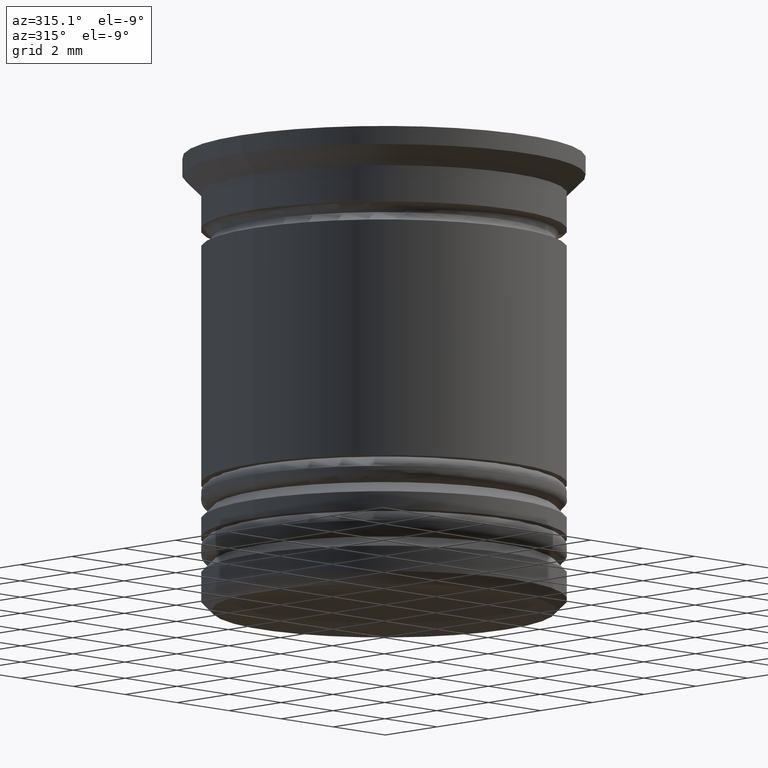
[diagram: clean part render]
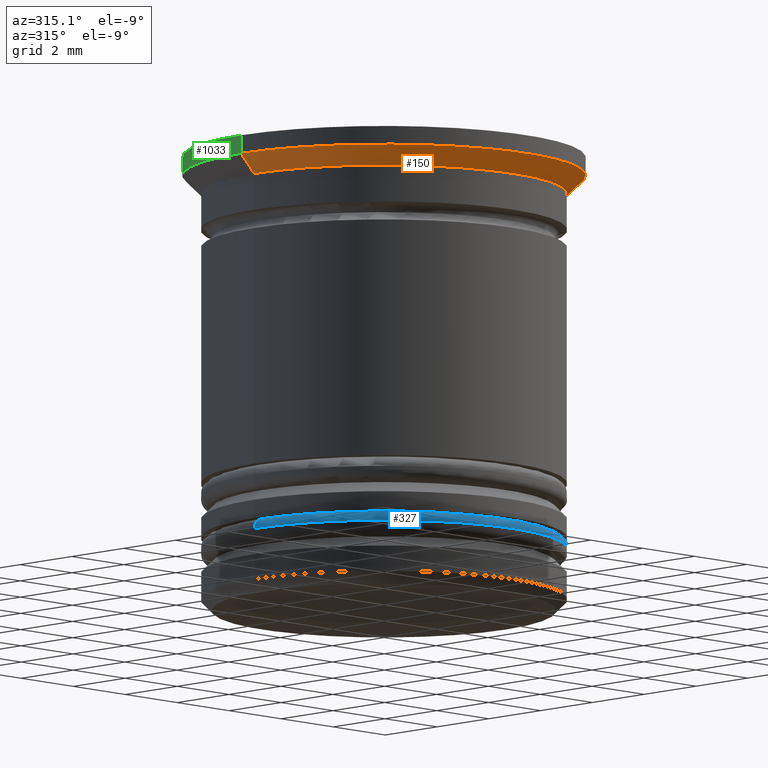
[diagram: same view with three faces highlighted in distinct colors, each labeled with its STEP entity id]
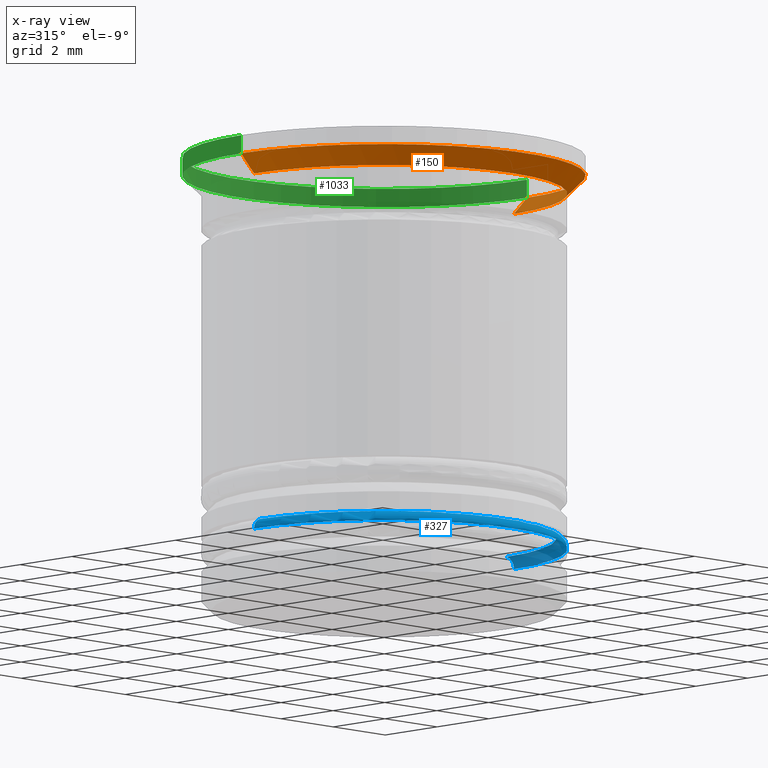
[diagram: x-ray of the same camera — body ghosted, the three highlighted faces saturated]
A machine part, auxiliary view with three faces highlighted in distinct colors.
The next image is the same camera in x-ray (body ghosted, the three faces saturated) — at least one of them is partly hidden behind the body in this view.
Their STEP definitions:

[orange] entity #150 — the highlighted conical surface has half-angle 45 deg.
#40 = VERTEX_POINT ( 'NONE', #548 ) ;
#85 = LINE ( 'NONE', #1905, #162 ) ;
#144 = VERTEX_POINT ( 'NONE', #1637 ) ;
#150 = ADVANCED_FACE ( 'NONE', ( #369 ), #157, .T. ) ;
#157 = CONICAL_SURFACE ( 'NONE', #312, 5.500000000000000000, 0.7853981633974500554 ) ;
#162 = VECTOR ( 'NONE', #997, 1000.000000000000000 ) ;
#165 = VERTEX_POINT ( 'NONE', #512 ) ;
#312 = AXIS2_PLACEMENT_3D ( 'NONE', #1823, #1039, #1494 ) ;
#317 = CIRCLE ( 'NONE', #602, 5.500000000000000000 ) ;
#369 = FACE_OUTER_BOUND ( 'NONE', #667, .T. ) ;
#426 = CARTESIAN_POINT ( 'NONE',  ( -5.500000000000000000, 6.735557395310442023E-16, -0.4999999999999976130 ) ) ;
#488 = VECTOR ( 'NONE', #1888, 1000.000000000000000 ) ;
#512 = CARTESIAN_POINT ( 'NONE',  ( -4.999999999999999112, 6.123233995736765296E-16, -0.9999999999999997780 ) ) ;
#548 = CARTESIAN_POINT ( 'NONE',  ( -5.500000000000000000, 6.735557395310442023E-16, -0.4999999999999976130 ) ) ;
#550 = DIRECTION ( 'NONE',  ( -0.000000000000000000, -0.000000000000000000, 1.000000000000000000 ) ) ;
#602 = AXIS2_PLACEMENT_3D ( 'NONE', #648, #1915, #1135 ) ;
#648 = CARTESIAN_POINT ( 'NONE',  ( 0.000000000000000000, 0.000000000000000000, -0.4999999999999976130 ) ) ;
#667 = EDGE_LOOP ( 'NONE', ( #1946, #1945, #1936, #1299 ) ) ;
#795 = EDGE_CURVE ( 'NONE', #165, #40, #2066, .T. ) ;
#950 = VERTEX_POINT ( 'NONE', #1029 ) ;
#997 = DIRECTION ( 'NONE',  ( 0.7071067811865487940, 0.000000000000000000, 0.7071067811865463515 ) ) ;
#1029 = CARTESIAN_POINT ( 'NONE',  ( 5.500000000000000000, 0.000000000000000000, -0.4999999999999976130 ) ) ;
#1039 = DIRECTION ( 'NONE',  ( -0.000000000000000000, -0.000000000000000000, 1.000000000000000000 ) ) ;
#1063 = AXIS2_PLACEMENT_3D ( 'NONE', #1267, #550, #1154 ) ;
#1135 = DIRECTION ( 'NONE',  ( -1.000000000000000000, 0.000000000000000000, 0.000000000000000000 ) ) ;
#1154 = DIRECTION ( 'NONE',  ( 1.000000000000000000, 0.000000000000000000, 0.000000000000000000 ) ) ;
#1166 = EDGE_CURVE ( 'NONE', #165, #144, #1971, .T. ) ;
#1175 = EDGE_CURVE ( 'NONE', #144, #950, #85, .T. ) ;
#1191 = EDGE_CURVE ( 'NONE', #40, #950, #317, .T. ) ;
#1267 = CARTESIAN_POINT ( 'NONE',  ( 0.000000000000000000, 0.000000000000000000, -0.9999999999999997780 ) ) ;
#1299 = ORIENTED_EDGE ( 'NONE', *, *, #1191, .F. ) ;
#1494 = DIRECTION ( 'NONE',  ( 1.000000000000000000, 0.000000000000000000, 0.000000000000000000 ) ) ;
#1637 = CARTESIAN_POINT ( 'NONE',  ( 4.999999999999999112, 0.000000000000000000, -0.9999999999999997780 ) ) ;
#1823 = CARTESIAN_POINT ( 'NONE',  ( 0.000000000000000000, 0.000000000000000000, -0.4999999999999976130 ) ) ;
#1888 = DIRECTION ( 'NONE',  ( -0.7071067811865487940, 8.659560562354948882E-17, 0.7071067811865463515 ) ) ;
#1905 = CARTESIAN_POINT ( 'NONE',  ( 5.500000000000000000, 0.000000000000000000, -0.4999999999999976130 ) ) ;
#1915 = DIRECTION ( 'NONE',  ( -0.000000000000000000, -0.000000000000000000, 1.000000000000000000 ) ) ;
#1936 = ORIENTED_EDGE ( 'NONE', *, *, #1175, .T. ) ;
#1945 = ORIENTED_EDGE ( 'NONE', *, *, #1166, .T. ) ;
#1946 = ORIENTED_EDGE ( 'NONE', *, *, #795, .F. ) ;
#1971 = CIRCLE ( 'NONE', #1063, 4.999999999999999112 ) ;
#2066 = LINE ( 'NONE', #426, #488 ) ;

[blue] entity #327 — the highlighted toroidal blend (fillet) surface has major radius 4.7 mm and minor (blend) radius 0.3 mm.
#115 = CARTESIAN_POINT ( 'NONE',  ( 4.700000000000003730, 5.755839955992564585E-16, -10.80000000000000249 ) ) ;
#134 = CIRCLE ( 'NONE', #1292, 5.000000000000003553 ) ;
#137 = ORIENTED_EDGE ( 'NONE', *, *, #1666, .F. ) ;
#198 = DIRECTION ( 'NONE',  ( -0.000000000000000000, -0.000000000000000000, 1.000000000000000000 ) ) ;
#327 = ADVANCED_FACE ( 'NONE', ( #1421 ), #346, .T. ) ;
#346 = TOROIDAL_SURFACE ( 'NONE', #1256, 4.700000000000003730, 0.2999999999999999889 ) ;
#375 = DIRECTION ( 'NONE',  ( 0.000000000000000000, 0.000000000000000000, -1.000000000000000000 ) ) ;
#493 = CIRCLE ( 'NONE', #1537, 4.700000000000003730 ) ;
#579 = CARTESIAN_POINT ( 'NONE',  ( -5.000000000000003553, 6.123233995736769241E-16, -10.80000000000000249 ) ) ;
#588 = DIRECTION ( 'NONE',  ( -1.000000000000000000, -1.224646799147353207E-16, 0.000000000000000000 ) ) ;
#638 = CARTESIAN_POINT ( 'NONE',  ( -4.700000000000003730, 0.000000000000000000, -10.50000000000000178 ) ) ;
#650 = ORIENTED_EDGE ( 'NONE', *, *, #1551, .F. ) ;
#715 = EDGE_CURVE ( 'NONE', #1106, #1370, #1357, .T. ) ;
#779 = ORIENTED_EDGE ( 'NONE', *, *, #1047, .T. ) ;
#802 = DIRECTION ( 'NONE',  ( -0.000000000000000000, -1.000000000000000000, -0.000000000000000000 ) ) ;
#839 = CARTESIAN_POINT ( 'NONE',  ( 5.000000000000003553, 0.000000000000000000, -10.80000000000000249 ) ) ;
#841 = EDGE_LOOP ( 'NONE', ( #1776, #650, #779, #137 ) ) ;
#1047 = EDGE_CURVE ( 'NONE', #2028, #1617, #1257, .T. ) ;
#1073 = DIRECTION ( 'NONE',  ( -1.000000000000000000, 0.000000000000000000, 0.000000000000000000 ) ) ;
#1106 = VERTEX_POINT ( 'NONE', #2063 ) ;
#1256 = AXIS2_PLACEMENT_3D ( 'NONE', #1590, #2077, #2067 ) ;
#1257 = CIRCLE ( 'NONE', #1625, 0.2999999999999999334 ) ;
#1292 = AXIS2_PLACEMENT_3D ( 'NONE', #1365, #375, #2003 ) ;
#1357 = CIRCLE ( 'NONE', #1968, 0.2999999999999999334 ) ;
#1365 = CARTESIAN_POINT ( 'NONE',  ( 0.000000000000000000, 0.000000000000000000, -10.80000000000000249 ) ) ;
#1370 = VERTEX_POINT ( 'NONE', #839 ) ;
#1400 = CARTESIAN_POINT ( 'NONE',  ( -4.700000000000003730, 0.000000000000000000, -10.80000000000000249 ) ) ;
#1421 = FACE_OUTER_BOUND ( 'NONE', #841, .T. ) ;
#1537 = AXIS2_PLACEMENT_3D ( 'NONE', #1788, #198, #1073 ) ;
#1551 = EDGE_CURVE ( 'NONE', #2028, #1106, #493, .T. ) ;
#1583 = DIRECTION ( 'NONE',  ( -1.224646799147353207E-16, 1.000000000000000000, 0.000000000000000000 ) ) ;
#1590 = CARTESIAN_POINT ( 'NONE',  ( 0.000000000000000000, 0.000000000000000000, -10.80000000000000249 ) ) ;
#1617 = VERTEX_POINT ( 'NONE', #579 ) ;
#1625 = AXIS2_PLACEMENT_3D ( 'NONE', #1400, #802, #2082 ) ;
#1666 = EDGE_CURVE ( 'NONE', #1370, #1617, #134, .T. ) ;
#1776 = ORIENTED_EDGE ( 'NONE', *, *, #715, .F. ) ;
#1788 = CARTESIAN_POINT ( 'NONE',  ( 0.000000000000000000, 0.000000000000000000, -10.50000000000000178 ) ) ;
#1968 = AXIS2_PLACEMENT_3D ( 'NONE', #115, #1583, #588 ) ;
#2003 = DIRECTION ( 'NONE',  ( -1.000000000000000000, 0.000000000000000000, 0.000000000000000000 ) ) ;
#2028 = VERTEX_POINT ( 'NONE', #638 ) ;
#2063 = CARTESIAN_POINT ( 'NONE',  ( 4.700000000000003730, 5.939536975864667899E-16, -10.50000000000000178 ) ) ;
#2067 = DIRECTION ( 'NONE',  ( -1.000000000000000000, 0.000000000000000000, 0.000000000000000000 ) ) ;
#2077 = DIRECTION ( 'NONE',  ( 0.000000000000000000, 0.000000000000000000, -1.000000000000000000 ) ) ;
#2082 = DIRECTION ( 'NONE',  ( 0.000000000000000000, 0.000000000000000000, -1.000000000000000000 ) ) ;

[green] entity #1033 — the highlighted cylindrical surface (partial cylindrical patch) has radius 5.5 mm, axis along (-0, -0, 1).
#40 = VERTEX_POINT ( 'NONE', #548 ) ;
#61 = LINE ( 'NONE', #378, #1834 ) ;
#292 = CARTESIAN_POINT ( 'NONE',  ( 0.000000000000000000, 0.000000000000000000, 0.000000000000000000 ) ) ;
#378 = CARTESIAN_POINT ( 'NONE',  ( -5.500000000000000000, 6.735557395310442023E-16, 0.000000000000000000 ) ) ;
#383 = CARTESIAN_POINT ( 'NONE',  ( 5.500000000000000000, 0.000000000000000000, 0.000000000000000000 ) ) ;
#407 = DIRECTION ( 'NONE',  ( -0.000000000000000000, -0.000000000000000000, 1.000000000000000000 ) ) ;
#464 = EDGE_CURVE ( 'NONE', #40, #615, #61, .T. ) ;
#548 = CARTESIAN_POINT ( 'NONE',  ( -5.500000000000000000, 6.735557395310442023E-16, -0.4999999999999976130 ) ) ;
#562 = EDGE_CURVE ( 'NONE', #950, #2059, #888, .T. ) ;
#591 = ORIENTED_EDGE ( 'NONE', *, *, #810, .F. ) ;
#598 = AXIS2_PLACEMENT_3D ( 'NONE', #292, #939, #1576 ) ;
#615 = VERTEX_POINT ( 'NONE', #917 ) ;
#633 = DIRECTION ( 'NONE',  ( -0.000000000000000000, -0.000000000000000000, 1.000000000000000000 ) ) ;
#810 = EDGE_CURVE ( 'NONE', #2059, #615, #2068, .T. ) ;
#826 = AXIS2_PLACEMENT_3D ( 'NONE', #1077, #633, #1911 ) ;
#888 = LINE ( 'NONE', #383, #1656 ) ;
#917 = CARTESIAN_POINT ( 'NONE',  ( -5.500000000000000000, 6.735557395310442023E-16, 0.000000000000000000 ) ) ;
#939 = DIRECTION ( 'NONE',  ( -0.000000000000000000, -0.000000000000000000, 1.000000000000000000 ) ) ;
#950 = VERTEX_POINT ( 'NONE', #1029 ) ;
#951 = ORIENTED_EDGE ( 'NONE', *, *, #464, .T. ) ;
#956 = FACE_OUTER_BOUND ( 'NONE', #1715, .T. ) ;
#1029 = CARTESIAN_POINT ( 'NONE',  ( 5.500000000000000000, 0.000000000000000000, -0.4999999999999976130 ) ) ;
#1031 = DIRECTION ( 'NONE',  ( -0.000000000000000000, -0.000000000000000000, 1.000000000000000000 ) ) ;
#1033 = ADVANCED_FACE ( 'NONE', ( #956 ), #1417, .T. ) ;
#1077 = CARTESIAN_POINT ( 'NONE',  ( 0.000000000000000000, 0.000000000000000000, -0.4999999999999976130 ) ) ;
#1417 = CYLINDRICAL_SURFACE ( 'NONE', #2072, 5.500000000000000000 ) ;
#1480 = ORIENTED_EDGE ( 'NONE', *, *, #562, .F. ) ;
#1518 = EDGE_CURVE ( 'NONE', #950, #40, #1766, .T. ) ;
#1575 = DIRECTION ( 'NONE',  ( 1.000000000000000000, 0.000000000000000000, 0.000000000000000000 ) ) ;
#1576 = DIRECTION ( 'NONE',  ( 1.000000000000000000, 0.000000000000000000, 0.000000000000000000 ) ) ;
#1595 = DIRECTION ( 'NONE',  ( -0.000000000000000000, -0.000000000000000000, 1.000000000000000000 ) ) ;
#1643 = ORIENTED_EDGE ( 'NONE', *, *, #1518, .T. ) ;
#1656 = VECTOR ( 'NONE', #1031, 1000.000000000000000 ) ;
#1715 = EDGE_LOOP ( 'NONE', ( #1643, #951, #591, #1480 ) ) ;
#1751 = CARTESIAN_POINT ( 'NONE',  ( 0.000000000000000000, 0.000000000000000000, 0.000000000000000000 ) ) ;
#1766 = CIRCLE ( 'NONE', #826, 5.500000000000000000 ) ;
#1834 = VECTOR ( 'NONE', #407, 1000.000000000000000 ) ;
#1911 = DIRECTION ( 'NONE',  ( -1.000000000000000000, 0.000000000000000000, 0.000000000000000000 ) ) ;
#1914 = CARTESIAN_POINT ( 'NONE',  ( 5.500000000000000000, 0.000000000000000000, 0.000000000000000000 ) ) ;
#2059 = VERTEX_POINT ( 'NONE', #1914 ) ;
#2068 = CIRCLE ( 'NONE', #598, 5.500000000000000000 ) ;
#2072 = AXIS2_PLACEMENT_3D ( 'NONE', #1751, #1595, #1575 ) ;